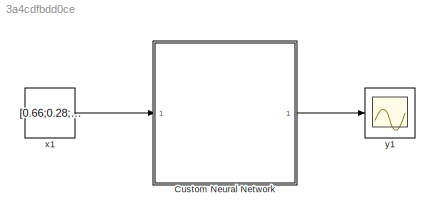
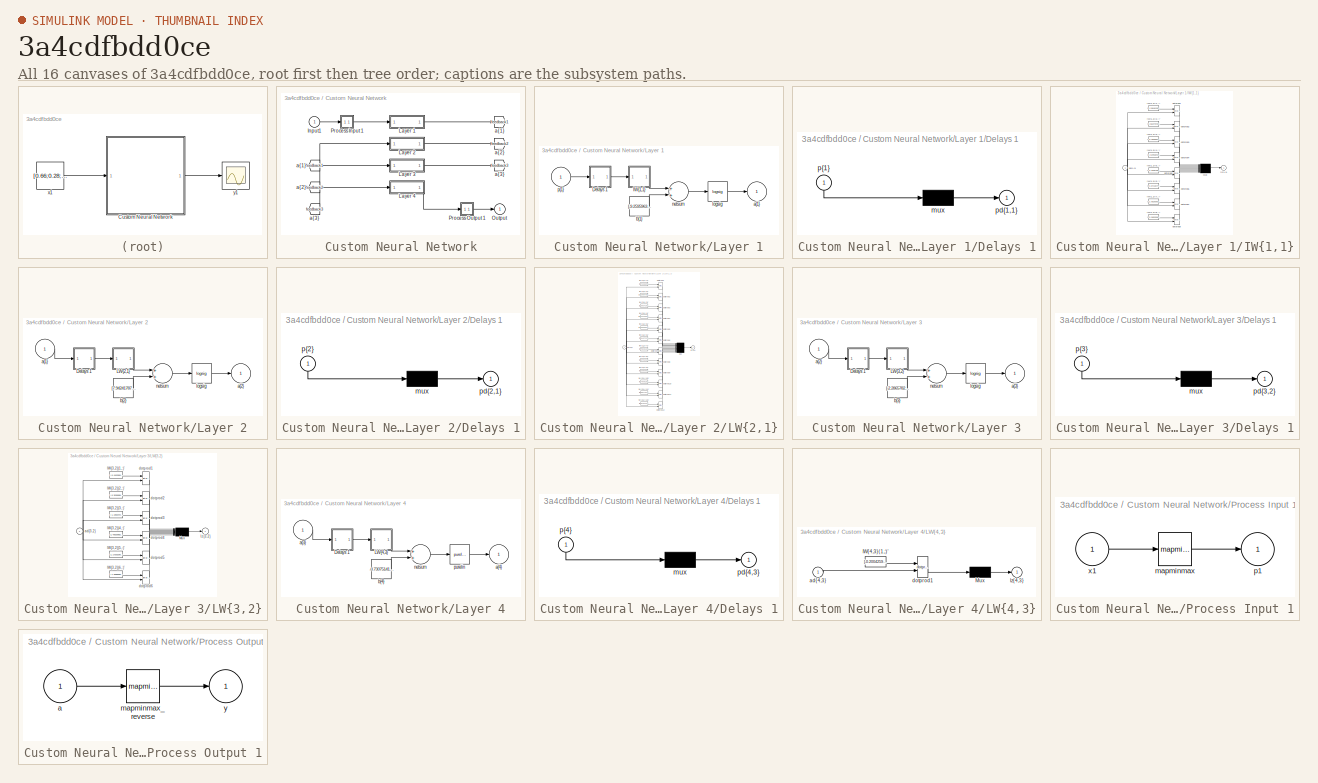
[diagram: thumbnail index - all 16 canvases of the model, root first then tree order]
MODEL slx_3a4cdfbdd0ce
KIND model
CONFIG AbsTol = auto
CONFIG FixedStep = auto
CONFIG MaxStep = auto
CONFIG MinStep = auto
CONFIG RelTol = 1e-3
CONFIG SampleTimeConstraint = Unconstrained
CONFIG Solver = VariableStepAuto
CONFIG SolverMode = Auto
CONFIG SolverName = VariableStepAuto
CONFIG StartTime = 0.0
CONFIG StopTime = 10.0
BLOCK [SubSystem] Custom Neural Network
  Ports = [1, 1]
  RequestExecContextInheritance = off
  Variant = off
BLOCK [From] Custom Neural Network/ a{1} 
  GotoTag = feedback1
BLOCK [From] Custom Neural Network/ a{2} 
  GotoTag = feedback2
BLOCK [From] Custom Neural Network/ a{3} 
  GotoTag = feedback3
BLOCK [Inport] Custom Neural Network/Input1 
  IconDisplay = Port number
  PortDimensions = 3
BLOCK [SubSystem] Custom Neural Network/Layer 1
  Ports = [1, 1]
  RequestExecContextInheritance = off
  Variant = off
BLOCK [SubSystem] Custom Neural Network/Layer 1/Delays 1
  Ports = [1, 1]
  RequestExecContextInheritance = off
  Variant = off
BLOCK [Mux] Custom Neural Network/Layer 1/Delays 1/mux
  Inputs = 1
  Ports = [1, 1]
BLOCK [Outport] Custom Neural Network/Layer 1/Delays 1/pd{1,1}
  IconDisplay = Port number
BLOCK [Inport] Custom Neural Network/Layer 1/Delays 1/p{1}
  IconDisplay = Port number
  PortDimensions = 3
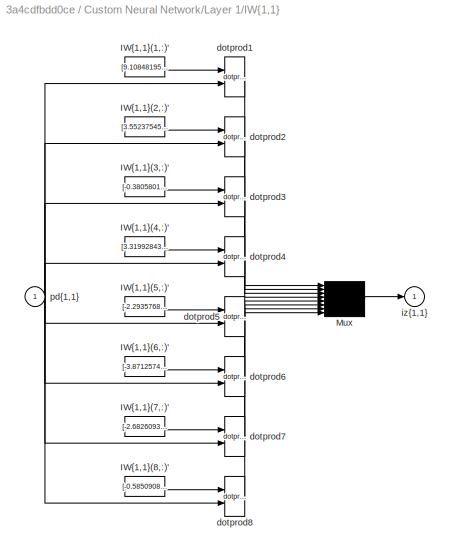
BLOCK [SubSystem] Custom Neural Network/Layer 1/IW{1,1}
  Ports = [1, 1]
  RequestExecContextInheritance = off
  Variant = off
BLOCK [Constant] Custom Neural Network/Layer 1/IW{1,1}/IW{1,1}(1,:)'
  Value = [9.1084819555099195;0.15987569344433911;-0.046776150350882159]
BLOCK [Constant] Custom Neural Network/Layer 1/IW{1,1}/IW{1,1}(2,:)'
  Value = [3.5523754574419706;4.5785828359828917;-2.90357059325309]
BLOCK [Constant] Custom Neural Network/Layer 1/IW{1,1}/IW{1,1}(3,:)'
  Value = [-0.38058013111663302;-4.0545223920856266;-3.0882084254570441]
BLOCK [Constant] Custom Neural Network/Layer 1/IW{1,1}/IW{1,1}(4,:)'
  Value = [3.3199284334235859;-1.4090237759094009;4.1433398290551855]
BLOCK [Constant] Custom Neural Network/Layer 1/IW{1,1}/IW{1,1}(5,:)'
  Value = [-2.293576863157464;-4.2962372851084316;6.2101001071899766]
BLOCK [Constant] Custom Neural Network/Layer 1/IW{1,1}/IW{1,1}(6,:)'
  Value = [-3.8712574461865725;-3.9635740488602211;-0.77875733358691812]
BLOCK [Constant] Custom Neural Network/Layer 1/IW{1,1}/IW{1,1}(7,:)'
  Value = [-2.6826093252746643;-0.21455261866844069;-4.6814615817476781]
BLOCK [Constant] Custom Neural Network/Layer 1/IW{1,1}/IW{1,1}(8,:)'
  Value = [-0.5850908133543663;-3.4324327709782589;-4.3360061013316109]
BLOCK [Mux] Custom Neural Network/Layer 1/IW{1,1}/Mux
  Inputs = 8
  Ports = [8, 1]
BLOCK [Reference] Custom Neural Network/Layer 1/IW{1,1}/dotprod1  REF=neural/Weight Functions/dotprod
  Ports = [2, 1]
  SourceBlock = neural/Weight Functions/dotprod
  SourceType = DOTPROD
BLOCK [Reference] Custom Neural Network/Layer 1/IW{1,1}/dotprod2  REF=neural/Weight Functions/dotprod
  Ports = [2, 1]
  SourceBlock = neural/Weight Functions/dotprod
  SourceType = DOTPROD
BLOCK [Reference] Custom Neural Network/Layer 1/IW{1,1}/dotprod3  REF=neural/Weight Functions/dotprod
  Ports = [2, 1]
  SourceBlock = neural/Weight Functions/dotprod
  SourceType = DOTPROD
BLOCK [Reference] Custom Neural Network/Layer 1/IW{1,1}/dotprod4  REF=neural/Weight Functions/dotprod
  Ports = [2, 1]
  SourceBlock = neural/Weight Functions/dotprod
  SourceType = DOTPROD
BLOCK [Reference] Custom Neural Network/Layer 1/IW{1,1}/dotprod5  REF=neural/Weight Functions/dotprod
  Ports = [2, 1]
  SourceBlock = neural/Weight Functions/dotprod
  SourceType = DOTPROD
BLOCK [Reference] Custom Neural Network/Layer 1/IW{1,1}/dotprod6  REF=neural/Weight Functions/dotprod
  Ports = [2, 1]
  SourceBlock = neural/Weight Functions/dotprod
  SourceType = DOTPROD
BLOCK [Reference] Custom Neural Network/Layer 1/IW{1,1}/dotprod7  REF=neural/Weight Functions/dotprod
  Ports = [2, 1]
  SourceBlock = neural/Weight Functions/dotprod
  SourceType = DOTPROD
BLOCK [Reference] Custom Neural Network/Layer 1/IW{1,1}/dotprod8  REF=neural/Weight Functions/dotprod
  Ports = [2, 1]
  SourceBlock = neural/Weight Functions/dotprod
  SourceType = DOTPROD
BLOCK [Outport] Custom Neural Network/Layer 1/IW{1,1}/iz{1,1}
  IconDisplay = Port number
BLOCK [Inport] Custom Neural Network/Layer 1/IW{1,1}/pd{1,1}
  IconDisplay = Port number
  PortDimensions = 3
BLOCK [Outport] Custom Neural Network/Layer 1/a{1}
  IconDisplay = Port number
  InitialOutput = [0;0;0;0;0;0;0;0]
BLOCK [Constant] Custom Neural Network/Layer 1/b{1}
  Value = [-9.2595963944558424;-2.2107237301390485;-3.7322520579344869;-0.51477897911733461;-2.2478265779126465;-1.1980943979150322;-4.4324038030714803;-5.4020355448946065]
BLOCK [Reference] Custom Neural Network/Layer 1/logsig  REF=neural/Transfer Functions/logsig
  Ports = [1, 1]
  SourceBlock = neural/Transfer Functions/logsig
  SourceType = LOGSIG
BLOCK [Sum] Custom Neural Network/Layer 1/netsum
  Inputs = 2
  Ports = [2, 1]
BLOCK [Inport] Custom Neural Network/Layer 1/p{1}
  IconDisplay = Port number
  PortDimensions = 3
BLOCK [SubSystem] Custom Neural Network/Layer 2
  Ports = [1, 1]
  RequestExecContextInheritance = off
  Variant = off
BLOCK [SubSystem] Custom Neural Network/Layer 2/Delays 1
  Ports = [1, 1]
  RequestExecContextInheritance = off
  Variant = off
BLOCK [Mux] Custom Neural Network/Layer 2/Delays 1/mux
  Inputs = 1
  Ports = [1, 1]
BLOCK [Outport] Custom Neural Network/Layer 2/Delays 1/pd{2,1}
  IconDisplay = Port number
BLOCK [Inport] Custom Neural Network/Layer 2/Delays 1/p{2}
  IconDisplay = Port number
  PortDimensions = 8
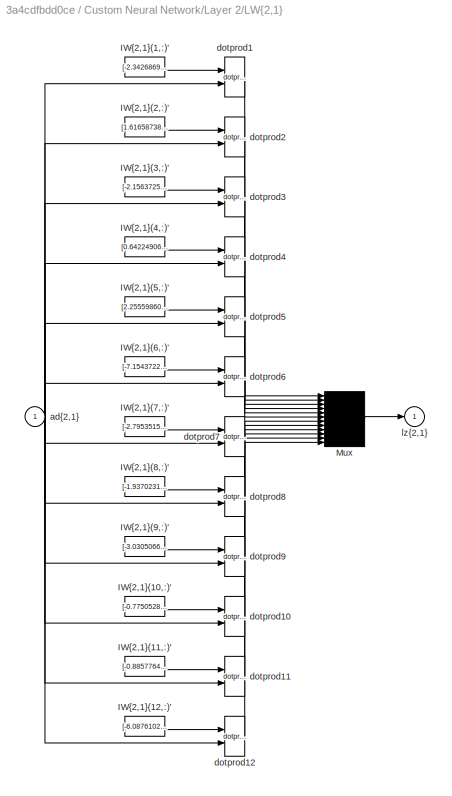
BLOCK [SubSystem] Custom Neural Network/Layer 2/LW{2,1}
  Ports = [1, 1]
  RequestExecContextInheritance = off
  Variant = off
BLOCK [Constant] Custom Neural Network/Layer 2/LW{2,1}/IW{2,1}(1,:)'
  Value = [-2.3426869759082471;-3.5936972397868203;-3.8918530225104169;-3.5870710015868741;-2.1060323339031757;1.0971909658567631;2.6105092789615809;2.1490615254864185]
BLOCK [Constant] Custom Neural Network/Layer 2/LW{2,1}/IW{2,1}(10,:)'
  Value = [-0.77505283774534306;4.3826885098700403;4.3247281225991037;2.2168787400642485;1.4790079852285491;0.28971021055527679;1.8377986586127775;3.5405309637807534]
BLOCK [Constant] Custom Neural Network/Layer 2/LW{2,1}/IW{2,1}(11,:)'
  Value = [-0.88577640987634143;0.52479568174212943;3.1630012300582586;3.811311435105893;4.2091581445069739;-0.62959473636182328;0.077977611711862294;3.2972568657832295]
BLOCK [Constant] Custom Neural Network/Layer 2/LW{2,1}/IW{2,1}(12,:)'
  Value = [-6.0876102331583839;1.6034717966903544;-2.9522780484320625;2.6281202626170841;1.0207722413386391;-3.2481629794290328;3.3339450873514456;-3.0705856496410338]
BLOCK [Constant] Custom Neural Network/Layer 2/LW{2,1}/IW{2,1}(2,:)'
  Value = [1.6165873808350273;4.0384242943323247;0.42263395486024224;-1.0053418967181691;3.1639453051092361;-2.5904001606112814;-4.5691976462880195;3.0808371856056693]
BLOCK [Constant] Custom Neural Network/Layer 2/LW{2,1}/IW{2,1}(3,:)'
  Value = [-2.1563725363541795;-4.0663006303654381;1.2118458462610544;1.79104167730389;-2.5242243934447277;-2.3829037540999138;-3.9494414309885695;-0.38399051323868683]
BLOCK [Constant] Custom Neural Network/Layer 2/LW{2,1}/IW{2,1}(4,:)'
  Value = [0.64224906805189497;3.4694587282737404;1.5852835140570847;-3.7486733132145416;-3.7751330546784763;3.635633600931464;0.32916645363799879;-0.48646702503172184]
BLOCK [Constant] Custom Neural Network/Layer 2/LW{2,1}/IW{2,1}(5,:)'
  Value = [2.255598600956652;2.3102459657915722;-0.56249152546205783;1.8123322459637858;2.0864368857001256;-4.3794112594449333;-3.6527790130124886;2.9850908820211144]
BLOCK [Constant] Custom Neural Network/Layer 2/LW{2,1}/IW{2,1}(6,:)'
  Value = [-7.1543722659001698;1.6029725223006486;-1.4247611554115991;-2.8348539448696362;0.189403079182557;-0.022411779763882207;3.4524051149485149;-4.2521863645922524]
BLOCK [Constant] Custom Neural Network/Layer 2/LW{2,1}/IW{2,1}(7,:)'
  Value = [-2.7953515352827507;-0.76785833783047708;3.9638870149223351;0.50087016875489088;-0.73182554543739309;-3.4683915303270085;2.3762022933229079;-3.5858500041593224]
BLOCK [Constant] Custom Neural Network/Layer 2/LW{2,1}/IW{2,1}(8,:)'
  Value = [-1.9370231360169587;-1.1743767955900977;-3.540435652513481;0.33281189800218036;4.3578330423530494;3.7549234740931117;1.8787051655052975;-2.5836585476130325]
BLOCK [Constant] Custom Neural Network/Layer 2/LW{2,1}/IW{2,1}(9,:)'
  Value = [-3.0305066793699575;-0.18094075054881525;4.2295793562151864;4.0350583081631504;0.7754368799537652;2.5682021764437972;-3.7238884746752206;-0.99664887192350926]
BLOCK [Mux] Custom Neural Network/Layer 2/LW{2,1}/Mux
  Inputs = 12
  Ports = [12, 1]
BLOCK [Inport] Custom Neural Network/Layer 2/LW{2,1}/ad{2,1}
  IconDisplay = Port number
  PortDimensions = 8
BLOCK [Reference] Custom Neural Network/Layer 2/LW{2,1}/dotprod1  REF=neural/Weight Functions/dotprod
  Ports = [2, 1]
  SourceBlock = neural/Weight Functions/dotprod
  SourceType = DOTPROD
BLOCK [Reference] Custom Neural Network/Layer 2/LW{2,1}/dotprod10  REF=neural/Weight Functions/dotprod
  Ports = [2, 1]
  SourceBlock = neural/Weight Functions/dotprod
  SourceType = DOTPROD
BLOCK [Reference] Custom Neural Network/Layer 2/LW{2,1}/dotprod11  REF=neural/Weight Functions/dotprod
  Ports = [2, 1]
  SourceBlock = neural/Weight Functions/dotprod
  SourceType = DOTPROD
BLOCK [Reference] Custom Neural Network/Layer 2/LW{2,1}/dotprod12  REF=neural/Weight Functions/dotprod
  Ports = [2, 1]
  SourceBlock = neural/Weight Functions/dotprod
  SourceType = DOTPROD
BLOCK [Reference] Custom Neural Network/Layer 2/LW{2,1}/dotprod2  REF=neural/Weight Functions/dotprod
  Ports = [2, 1]
  SourceBlock = neural/Weight Functions/dotprod
  SourceType = DOTPROD
BLOCK [Reference] Custom Neural Network/Layer 2/LW{2,1}/dotprod3  REF=neural/Weight Functions/dotprod
  Ports = [2, 1]
  SourceBlock = neural/Weight Functions/dotprod
  SourceType = DOTPROD
BLOCK [Reference] Custom Neural Network/Layer 2/LW{2,1}/dotprod4  REF=neural/Weight Functions/dotprod
  Ports = [2, 1]
  SourceBlock = neural/Weight Functions/dotprod
  SourceType = DOTPROD
BLOCK [Reference] Custom Neural Network/Layer 2/LW{2,1}/dotprod5  REF=neural/Weight Functions/dotprod
  Ports = [2, 1]
  SourceBlock = neural/Weight Functions/dotprod
  SourceType = DOTPROD
BLOCK [Reference] Custom Neural Network/Layer 2/LW{2,1}/dotprod6  REF=neural/Weight Functions/dotprod
  Ports = [2, 1]
  SourceBlock = neural/Weight Functions/dotprod
  SourceType = DOTPROD
BLOCK [Reference] Custom Neural Network/Layer 2/LW{2,1}/dotprod7  REF=neural/Weight Functions/dotprod
  Ports = [2, 1]
  SourceBlock = neural/Weight Functions/dotprod
  SourceType = DOTPROD
BLOCK [Reference] Custom Neural Network/Layer 2/LW{2,1}/dotprod8  REF=neural/Weight Functions/dotprod
  Ports = [2, 1]
  SourceBlock = neural/Weight Functions/dotprod
  SourceType = DOTPROD
BLOCK [Reference] Custom Neural Network/Layer 2/LW{2,1}/dotprod9  REF=neural/Weight Functions/dotprod
  Ports = [2, 1]
  SourceBlock = neural/Weight Functions/dotprod
  SourceType = DOTPROD
BLOCK [Outport] Custom Neural Network/Layer 2/LW{2,1}/lz{2,1}
  IconDisplay = Port number
BLOCK [Inport] Custom Neural Network/Layer 2/a{1} 
  IconDisplay = Port number
  PortDimensions = 8
BLOCK [Outport] Custom Neural Network/Layer 2/a{2}
  IconDisplay = Port number
  InitialOutput = [0;0;0;0;0;0;0;0;0;0;0;0]
BLOCK [Constant] Custom Neural Network/Layer 2/b{2}
  Value = [7.9424178760148703;-1.0715037861564831;9.4705082484882048;-2.8365267751808538;-2.6497132946935626;5.3259545457957973;-2.1694325307891109;-0.14187119348702187;-3.3840100412410958;-10.411139329549732;-4.6220649071138009;-1.2929607391945137]
BLOCK [Reference] Custom Neural Network/Layer 2/logsig  REF=neural/Transfer Functions/logsig
  Ports = [1, 1]
  SourceBlock = neural/Transfer Functions/logsig
  SourceType = LOGSIG
BLOCK [Sum] Custom Neural Network/Layer 2/netsum
  Inputs = 2
  Ports = [2, 1]
BLOCK [SubSystem] Custom Neural Network/Layer 3
  Ports = [1, 1]
  RequestExecContextInheritance = off
  Variant = off
BLOCK [SubSystem] Custom Neural Network/Layer 3/Delays 1
  Ports = [1, 1]
  RequestExecContextInheritance = off
  Variant = off
BLOCK [Mux] Custom Neural Network/Layer 3/Delays 1/mux
  Inputs = 1
  Ports = [1, 1]
BLOCK [Outport] Custom Neural Network/Layer 3/Delays 1/pd{3,2}
  IconDisplay = Port number
BLOCK [Inport] Custom Neural Network/Layer 3/Delays 1/p{3}
  IconDisplay = Port number
  PortDimensions = 12
BLOCK [SubSystem] Custom Neural Network/Layer 3/LW{3,2}
  Ports = [1, 1]
  RequestExecContextInheritance = off
  Variant = off
BLOCK [Constant] Custom Neural Network/Layer 3/LW{3,2}/IW{3,2}(1,:)'
  Value = [-0.41533609120311954;0.26134562140957263;-1.6702482976951005;1.740747947291255;3.4119446713761388;1.6037736729273715;0.54383527534279508;2.9473346585501048;-0.28418483399727279;0.57552477995666973;2.7661288379659319;2.9058559766227514]
BLOCK [Constant] Custom Neural Network/Layer 3/LW{3,2}/IW{3,2}(2,:)'
  Value = [-0.35306898197916309;-3.627593916594452;-0.55499693449603216;-1.3995721420880884;-1.3433202858703783;-2.8394634116529289;1.6137212522785782;-3.4765191381475335;-0.58980218843696175;-1.7995279264267727;1.5678830476248951;1.4028306188283945]
BLOCK [Constant] Custom Neural Network/Layer 3/LW{3,2}/IW{3,2}(3,:)'
  Value = [-1.1993444511021154;3.5649841550525747;-0.92819506067165725;-0.64660229962911631;2.4294018583654808;-2.7555577544360159;1.3733450813231496;2.1507355669232489;-1.4916799369713134;-1.4858660184726733;-0.12205918850500633;-1.7887749440372582]
BLOCK [Constant] Custom Neural Network/Layer 3/LW{3,2}/IW{3,2}(4,:)'
  Value = [1.4362098235524841;-3.3095113241476573;2.210462376745097;0.030487519315720885;-0.40041820958916019;7.1179363403644444;-1.6023762136871695;0.93035918380858484;2.2922483877584323;0.95809972455898662;0.33038834116037419;4.5093730642613146]
BLOCK [Constant] Custom Neural Network/Layer 3/LW{3,2}/IW{3,2}(5,:)'
  Value = [1.1720329022795273;-1.753727155157607;3.2747285132730783;2.6733972415436305;1.3493467034025433;-1.1344659902815224;-0.85264970762122194;-0.93003178170965883;-1.4579570687108809;-1.3849527739630112;-0.67646880425624079;-2.5768053647444149]
BLOCK [Constant] Custom Neural Network/Layer 3/LW{3,2}/IW{3,2}(6,:)'
  Value = [-1.3688089569135662;-0.82745011495544196;-3.0067757157071959;-0.5226271962776976;1.3838895438327961;-3.2168040766823678;-0.28436775504929734;-2.1429830694825744;-0.78921032113382183;2.2086290967592861;2.7384310771876268;-0.56611095308966741]
BLOCK [Mux] Custom Neural Network/Layer 3/LW{3,2}/Mux
  Inputs = 6
  Ports = [6, 1]
BLOCK [Inport] Custom Neural Network/Layer 3/LW{3,2}/ad{3,2}
  IconDisplay = Port number
  PortDimensions = 12
BLOCK [Reference] Custom Neural Network/Layer 3/LW{3,2}/dotprod1  REF=neural/Weight Functions/dotprod
  Ports = [2, 1]
  SourceBlock = neural/Weight Functions/dotprod
  SourceType = DOTPROD
BLOCK [Reference] Custom Neural Network/Layer 3/LW{3,2}/dotprod2  REF=neural/Weight Functions/dotprod
  Ports = [2, 1]
  SourceBlock = neural/Weight Functions/dotprod
  SourceType = DOTPROD
BLOCK [Reference] Custom Neural Network/Layer 3/LW{3,2}/dotprod3  REF=neural/Weight Functions/dotprod
  Ports = [2, 1]
  SourceBlock = neural/Weight Functions/dotprod
  SourceType = DOTPROD
BLOCK [Reference] Custom Neural Network/Layer 3/LW{3,2}/dotprod4  REF=neural/Weight Functions/dotprod
  Ports = [2, 1]
  SourceBlock = neural/Weight Functions/dotprod
  SourceType = DOTPROD
BLOCK [Reference] Custom Neural Network/Layer 3/LW{3,2}/dotprod5  REF=neural/Weight Functions/dotprod
  Ports = [2, 1]
  SourceBlock = neural/Weight Functions/dotprod
  SourceType = DOTPROD
BLOCK [Reference] Custom Neural Network/Layer 3/LW{3,2}/dotprod6  REF=neural/Weight Functions/dotprod
  Ports = [2, 1]
  SourceBlock = neural/Weight Functions/dotprod
  SourceType = DOTPROD
BLOCK [Outport] Custom Neural Network/Layer 3/LW{3,2}/lz{3,2}
  IconDisplay = Port number
BLOCK [Inport] Custom Neural Network/Layer 3/a{2} 
  IconDisplay = Port number
  PortDimensions = 12
BLOCK [Outport] Custom Neural Network/Layer 3/a{3}
  IconDisplay = Port number
  InitialOutput = [0;0;0;0;0;0]
BLOCK [Constant] Custom Neural Network/Layer 3/b{3}
  Value = [-2.2865782177931968;0.70867096373344174;2.4862165560885137;-4.9603480471761339;6.85220739770363;-0.0022946230087913782]
BLOCK [Reference] Custom Neural Network/Layer 3/logsig  REF=neural/Transfer Functions/logsig
  Ports = [1, 1]
  SourceBlock = neural/Transfer Functions/logsig
  SourceType = LOGSIG
BLOCK [Sum] Custom Neural Network/Layer 3/netsum
  Inputs = 2
  Ports = [2, 1]
BLOCK [SubSystem] Custom Neural Network/Layer 4
  Ports = [1, 1]
  RequestExecContextInheritance = off
  Variant = off
BLOCK [SubSystem] Custom Neural Network/Layer 4/Delays 1
  Ports = [1, 1]
  RequestExecContextInheritance = off
  Variant = off
BLOCK [Mux] Custom Neural Network/Layer 4/Delays 1/mux
  Inputs = 1
  Ports = [1, 1]
BLOCK [Outport] Custom Neural Network/Layer 4/Delays 1/pd{4,3}
  IconDisplay = Port number
BLOCK [Inport] Custom Neural Network/Layer 4/Delays 1/p{4}
  IconDisplay = Port number
  PortDimensions = 6
BLOCK [SubSystem] Custom Neural Network/Layer 4/LW{4,3}
  Ports = [1, 1]
  RequestExecContextInheritance = off
  Variant = off
BLOCK [Constant] Custom Neural Network/Layer 4/LW{4,3}/IW{4,3}(1,:)'
  Value = [-0.20042591822894609;-0.64744471952713056;-1.2333198811512902;4.3067404305054193;-2.2159873115779671;-0.56464151103445614]
BLOCK [Mux] Custom Neural Network/Layer 4/LW{4,3}/Mux
  Inputs = 1
  Ports = [1, 1]
BLOCK [Inport] Custom Neural Network/Layer 4/LW{4,3}/ad{4,3}
  IconDisplay = Port number
  PortDimensions = 6
BLOCK [Reference] Custom Neural Network/Layer 4/LW{4,3}/dotprod1  REF=neural/Weight Functions/dotprod
  Ports = [2, 1]
  SourceBlock = neural/Weight Functions/dotprod
  SourceType = DOTPROD
BLOCK [Outport] Custom Neural Network/Layer 4/LW{4,3}/lz{4,3}
  IconDisplay = Port number
BLOCK [Inport] Custom Neural Network/Layer 4/a{3} 
  IconDisplay = Port number
  PortDimensions = 6
BLOCK [Outport] Custom Neural Network/Layer 4/a{4}
  IconDisplay = Port number
  InitialOutput = 0
BLOCK [Constant] Custom Neural Network/Layer 4/b{4}
  Value = -0.73075141708033209
BLOCK [Sum] Custom Neural Network/Layer 4/netsum
  Inputs = 2
  Ports = [2, 1]
BLOCK [Reference] Custom Neural Network/Layer 4/purelin  REF=neural/Transfer Functions/purelin
  Ports = [1, 1]
  SourceBlock = neural/Transfer Functions/purelin
  SourceType = PURELIN
BLOCK [Outport] Custom Neural Network/Output
  IconDisplay = Port number
  InitialOutput = 0
BLOCK [SubSystem] Custom Neural Network/Process Input 1
  Ports = [1, 1]
  RequestExecContextInheritance = off
  Variant = off
BLOCK [Reference] Custom Neural Network/Process Input 1/mapminmax  REF=neural/Processing Functions/mapminmax
  Ports = [1, 1]
  SourceBlock = neural/Processing Functions/mapminmax
  SourceType = MAPMINMAX Preprocess
BLOCK [Outport] Custom Neural Network/Process Input 1/p1
  IconDisplay = Port number
  PortDimensions = 3
BLOCK [Inport] Custom Neural Network/Process Input 1/x1
  IconDisplay = Port number
  PortDimensions = 3
BLOCK [SubSystem] Custom Neural Network/Process Output 1
  Ports = [1, 1]
  RequestExecContextInheritance = off
  Variant = off
BLOCK [Inport] Custom Neural Network/Process Output 1/a
  IconDisplay = Port number
  PortDimensions = 1
BLOCK [Reference] Custom Neural Network/Process Output 1/mapminmax_reverse  REF=neural/Processing Functions/mapminmax_reverse
  Ports = [1, 1]
  SourceBlock = neural/Processing Functions/mapminmax_reverse
  SourceType = MAPMINMAX Reverse Process
BLOCK [Outport] Custom Neural Network/Process Output 1/y
  IconDisplay = Port number
  PortDimensions = 1
BLOCK [Goto] Custom Neural Network/a{1}
  GotoTag = feedback1
BLOCK [Goto] Custom Neural Network/a{2}
  GotoTag = feedback2
BLOCK [Goto] Custom Neural Network/a{3}
  GotoTag = feedback3
BLOCK [Constant] x1
  SampleTime = 1
  Value = [0.66;0.28;0.23]
BLOCK [Scope] y1
  Ports = [1]
LINE Custom Neural Network/ a{1} :1 -> Custom Neural Network/Layer 2:1
LINE Custom Neural Network/ a{2} :1 -> Custom Neural Network/Layer 3:1
LINE Custom Neural Network/ a{3} :1 -> Custom Neural Network/Layer 4:1
LINE Custom Neural Network/Input1 :1 -> Custom Neural Network/Process Input 1:1
LINE Custom Neural Network/Layer 1/Delays 1/mux:1 -> Custom Neural Network/Layer 1/Delays 1/pd{1,1}:1
LINE Custom Neural Network/Layer 1/Delays 1/p{1}:1 -> Custom Neural Network/Layer 1/Delays 1/mux:1
LINE Custom Neural Network/Layer 1/Delays 1:1 -> Custom Neural Network/Layer 1/IW{1,1}:1
LINE Custom Neural Network/Layer 1/IW{1,1}/IW{1,1}(1,:)':1 -> Custom Neural Network/Layer 1/IW{1,1}/dotprod1:1
LINE Custom Neural Network/Layer 1/IW{1,1}/IW{1,1}(2,:)':1 -> Custom Neural Network/Layer 1/IW{1,1}/dotprod2:1
LINE Custom Neural Network/Layer 1/IW{1,1}/IW{1,1}(3,:)':1 -> Custom Neural Network/Layer 1/IW{1,1}/dotprod3:1
LINE Custom Neural Network/Layer 1/IW{1,1}/IW{1,1}(4,:)':1 -> Custom Neural Network/Layer 1/IW{1,1}/dotprod4:1
LINE Custom Neural Network/Layer 1/IW{1,1}/IW{1,1}(5,:)':1 -> Custom Neural Network/Layer 1/IW{1,1}/dotprod5:1
LINE Custom Neural Network/Layer 1/IW{1,1}/IW{1,1}(6,:)':1 -> Custom Neural Network/Layer 1/IW{1,1}/dotprod6:1
LINE Custom Neural Network/Layer 1/IW{1,1}/IW{1,1}(7,:)':1 -> Custom Neural Network/Layer 1/IW{1,1}/dotprod7:1
LINE Custom Neural Network/Layer 1/IW{1,1}/IW{1,1}(8,:)':1 -> Custom Neural Network/Layer 1/IW{1,1}/dotprod8:1
LINE Custom Neural Network/Layer 1/IW{1,1}/Mux:1 -> Custom Neural Network/Layer 1/IW{1,1}/iz{1,1}:1
LINE Custom Neural Network/Layer 1/IW{1,1}/dotprod1:1 -> Custom Neural Network/Layer 1/IW{1,1}/Mux:1
LINE Custom Neural Network/Layer 1/IW{1,1}/dotprod2:1 -> Custom Neural Network/Layer 1/IW{1,1}/Mux:2
LINE Custom Neural Network/Layer 1/IW{1,1}/dotprod3:1 -> Custom Neural Network/Layer 1/IW{1,1}/Mux:3
LINE Custom Neural Network/Layer 1/IW{1,1}/dotprod4:1 -> Custom Neural Network/Layer 1/IW{1,1}/Mux:4
LINE Custom Neural Network/Layer 1/IW{1,1}/dotprod5:1 -> Custom Neural Network/Layer 1/IW{1,1}/Mux:5
LINE Custom Neural Network/Layer 1/IW{1,1}/dotprod6:1 -> Custom Neural Network/Layer 1/IW{1,1}/Mux:6
LINE Custom Neural Network/Layer 1/IW{1,1}/dotprod7:1 -> Custom Neural Network/Layer 1/IW{1,1}/Mux:7
LINE Custom Neural Network/Layer 1/IW{1,1}/dotprod8:1 -> Custom Neural Network/Layer 1/IW{1,1}/Mux:8
NET Custom Neural Network/Layer 1/IW{1,1}/pd{1,1}:1 -> Custom Neural Network/Layer 1/IW{1,1}/dotprod1:2, Custom Neural Network/Layer 1/IW{1,1}/dotprod2:2, Custom Neural Network/Layer 1/IW{1,1}/dotprod3:2, Custom Neural Network/Layer 1/IW{1,1}/dotprod4:2, Custom Neural Network/Layer 1/IW{1,1}/dotprod5:2, Custom Neural Network/Layer 1/IW{1,1}/dotprod6:2, Custom Neural Network/Layer 1/IW{1,1}/dotprod7:2, Custom Neural Network/Layer 1/IW{1,1}/dotprod8:2
LINE Custom Neural Network/Layer 1/IW{1,1}:1 -> Custom Neural Network/Layer 1/netsum:1
LINE Custom Neural Network/Layer 1/b{1}:1 -> Custom Neural Network/Layer 1/netsum:2
LINE Custom Neural Network/Layer 1/logsig:1 -> Custom Neural Network/Layer 1/a{1}:1
LINE Custom Neural Network/Layer 1/netsum:1 -> Custom Neural Network/Layer 1/logsig:1
LINE Custom Neural Network/Layer 1/p{1}:1 -> Custom Neural Network/Layer 1/Delays 1:1
LINE Custom Neural Network/Layer 1:1 -> Custom Neural Network/a{1}:1
LINE Custom Neural Network/Layer 2/Delays 1/mux:1 -> Custom Neural Network/Layer 2/Delays 1/pd{2,1}:1
LINE Custom Neural Network/Layer 2/Delays 1/p{2}:1 -> Custom Neural Network/Layer 2/Delays 1/mux:1
LINE Custom Neural Network/Layer 2/Delays 1:1 -> Custom Neural Network/Layer 2/LW{2,1}:1
LINE Custom Neural Network/Layer 2/LW{2,1}/IW{2,1}(1,:)':1 -> Custom Neural Network/Layer 2/LW{2,1}/dotprod1:1
LINE Custom Neural Network/Layer 2/LW{2,1}/IW{2,1}(10,:)':1 -> Custom Neural Network/Layer 2/LW{2,1}/dotprod10:1
LINE Custom Neural Network/Layer 2/LW{2,1}/IW{2,1}(11,:)':1 -> Custom Neural Network/Layer 2/LW{2,1}/dotprod11:1
LINE Custom Neural Network/Layer 2/LW{2,1}/IW{2,1}(12,:)':1 -> Custom Neural Network/Layer 2/LW{2,1}/dotprod12:1
LINE Custom Neural Network/Layer 2/LW{2,1}/IW{2,1}(2,:)':1 -> Custom Neural Network/Layer 2/LW{2,1}/dotprod2:1
LINE Custom Neural Network/Layer 2/LW{2,1}/IW{2,1}(3,:)':1 -> Custom Neural Network/Layer 2/LW{2,1}/dotprod3:1
LINE Custom Neural Network/Layer 2/LW{2,1}/IW{2,1}(4,:)':1 -> Custom Neural Network/Layer 2/LW{2,1}/dotprod4:1
LINE Custom Neural Network/Layer 2/LW{2,1}/IW{2,1}(5,:)':1 -> Custom Neural Network/Layer 2/LW{2,1}/dotprod5:1
LINE Custom Neural Network/Layer 2/LW{2,1}/IW{2,1}(6,:)':1 -> Custom Neural Network/Layer 2/LW{2,1}/dotprod6:1
LINE Custom Neural Network/Layer 2/LW{2,1}/IW{2,1}(7,:)':1 -> Custom Neural Network/Layer 2/LW{2,1}/dotprod7:1
LINE Custom Neural Network/Layer 2/LW{2,1}/IW{2,1}(8,:)':1 -> Custom Neural Network/Layer 2/LW{2,1}/dotprod8:1
LINE Custom Neural Network/Layer 2/LW{2,1}/IW{2,1}(9,:)':1 -> Custom Neural Network/Layer 2/LW{2,1}/dotprod9:1
LINE Custom Neural Network/Layer 2/LW{2,1}/Mux:1 -> Custom Neural Network/Layer 2/LW{2,1}/lz{2,1}:1
NET Custom Neural Network/Layer 2/LW{2,1}/ad{2,1}:1 -> Custom Neural Network/Layer 2/LW{2,1}/dotprod10:2, Custom Neural Network/Layer 2/LW{2,1}/dotprod11:2, Custom Neural Network/Layer 2/LW{2,1}/dotprod12:2, Custom Neural Network/Layer 2/LW{2,1}/dotprod1:2, Custom Neural Network/Layer 2/LW{2,1}/dotprod2:2, Custom Neural Network/Layer 2/LW{2,1}/dotprod3:2, Custom Neural Network/Layer 2/LW{2,1}/dotprod4:2, Custom Neural Network/Layer 2/LW{2,1}/dotprod5:2, Custom Neural Network/Layer 2/LW{2,1}/dotprod6:2, Custom Neural Network/Layer 2/LW{2,1}/dotprod7:2, Custom Neural Network/Layer 2/LW{2,1}/dotprod8:2, Custom Neural Network/Layer 2/LW{2,1}/dotprod9:2
LINE Custom Neural Network/Layer 2/LW{2,1}/dotprod10:1 -> Custom Neural Network/Layer 2/LW{2,1}/Mux:10
LINE Custom Neural Network/Layer 2/LW{2,1}/dotprod11:1 -> Custom Neural Network/Layer 2/LW{2,1}/Mux:11
LINE Custom Neural Network/Layer 2/LW{2,1}/dotprod12:1 -> Custom Neural Network/Layer 2/LW{2,1}/Mux:12
LINE Custom Neural Network/Layer 2/LW{2,1}/dotprod1:1 -> Custom Neural Network/Layer 2/LW{2,1}/Mux:1
LINE Custom Neural Network/Layer 2/LW{2,1}/dotprod2:1 -> Custom Neural Network/Layer 2/LW{2,1}/Mux:2
LINE Custom Neural Network/Layer 2/LW{2,1}/dotprod3:1 -> Custom Neural Network/Layer 2/LW{2,1}/Mux:3
LINE Custom Neural Network/Layer 2/LW{2,1}/dotprod4:1 -> Custom Neural Network/Layer 2/LW{2,1}/Mux:4
LINE Custom Neural Network/Layer 2/LW{2,1}/dotprod5:1 -> Custom Neural Network/Layer 2/LW{2,1}/Mux:5
LINE Custom Neural Network/Layer 2/LW{2,1}/dotprod6:1 -> Custom Neural Network/Layer 2/LW{2,1}/Mux:6
LINE Custom Neural Network/Layer 2/LW{2,1}/dotprod7:1 -> Custom Neural Network/Layer 2/LW{2,1}/Mux:7
LINE Custom Neural Network/Layer 2/LW{2,1}/dotprod8:1 -> Custom Neural Network/Layer 2/LW{2,1}/Mux:8
LINE Custom Neural Network/Layer 2/LW{2,1}/dotprod9:1 -> Custom Neural Network/Layer 2/LW{2,1}/Mux:9
LINE Custom Neural Network/Layer 2/LW{2,1}:1 -> Custom Neural Network/Layer 2/netsum:1
LINE Custom Neural Network/Layer 2/a{1} :1 -> Custom Neural Network/Layer 2/Delays 1:1
LINE Custom Neural Network/Layer 2/b{2}:1 -> Custom Neural Network/Layer 2/netsum:2
LINE Custom Neural Network/Layer 2/logsig:1 -> Custom Neural Network/Layer 2/a{2}:1
LINE Custom Neural Network/Layer 2/netsum:1 -> Custom Neural Network/Layer 2/logsig:1
LINE Custom Neural Network/Layer 2:1 -> Custom Neural Network/a{2}:1
LINE Custom Neural Network/Layer 3/Delays 1/mux:1 -> Custom Neural Network/Layer 3/Delays 1/pd{3,2}:1
LINE Custom Neural Network/Layer 3/Delays 1/p{3}:1 -> Custom Neural Network/Layer 3/Delays 1/mux:1
LINE Custom Neural Network/Layer 3/Delays 1:1 -> Custom Neural Network/Layer 3/LW{3,2}:1
LINE Custom Neural Network/Layer 3/LW{3,2}/IW{3,2}(1,:)':1 -> Custom Neural Network/Layer 3/LW{3,2}/dotprod1:1
LINE Custom Neural Network/Layer 3/LW{3,2}/IW{3,2}(2,:)':1 -> Custom Neural Network/Layer 3/LW{3,2}/dotprod2:1
LINE Custom Neural Network/Layer 3/LW{3,2}/IW{3,2}(3,:)':1 -> Custom Neural Network/Layer 3/LW{3,2}/dotprod3:1
LINE Custom Neural Network/Layer 3/LW{3,2}/IW{3,2}(4,:)':1 -> Custom Neural Network/Layer 3/LW{3,2}/dotprod4:1
LINE Custom Neural Network/Layer 3/LW{3,2}/IW{3,2}(5,:)':1 -> Custom Neural Network/Layer 3/LW{3,2}/dotprod5:1
LINE Custom Neural Network/Layer 3/LW{3,2}/IW{3,2}(6,:)':1 -> Custom Neural Network/Layer 3/LW{3,2}/dotprod6:1
LINE Custom Neural Network/Layer 3/LW{3,2}/Mux:1 -> Custom Neural Network/Layer 3/LW{3,2}/lz{3,2}:1
NET Custom Neural Network/Layer 3/LW{3,2}/ad{3,2}:1 -> Custom Neural Network/Layer 3/LW{3,2}/dotprod1:2, Custom Neural Network/Layer 3/LW{3,2}/dotprod2:2, Custom Neural Network/Layer 3/LW{3,2}/dotprod3:2, Custom Neural Network/Layer 3/LW{3,2}/dotprod4:2, Custom Neural Network/Layer 3/LW{3,2}/dotprod5:2, Custom Neural Network/Layer 3/LW{3,2}/dotprod6:2
LINE Custom Neural Network/Layer 3/LW{3,2}/dotprod1:1 -> Custom Neural Network/Layer 3/LW{3,2}/Mux:1
LINE Custom Neural Network/Layer 3/LW{3,2}/dotprod2:1 -> Custom Neural Network/Layer 3/LW{3,2}/Mux:2
LINE Custom Neural Network/Layer 3/LW{3,2}/dotprod3:1 -> Custom Neural Network/Layer 3/LW{3,2}/Mux:3
LINE Custom Neural Network/Layer 3/LW{3,2}/dotprod4:1 -> Custom Neural Network/Layer 3/LW{3,2}/Mux:4
LINE Custom Neural Network/Layer 3/LW{3,2}/dotprod5:1 -> Custom Neural Network/Layer 3/LW{3,2}/Mux:5
LINE Custom Neural Network/Layer 3/LW{3,2}/dotprod6:1 -> Custom Neural Network/Layer 3/LW{3,2}/Mux:6
LINE Custom Neural Network/Layer 3/LW{3,2}:1 -> Custom Neural Network/Layer 3/netsum:1
LINE Custom Neural Network/Layer 3/a{2} :1 -> Custom Neural Network/Layer 3/Delays 1:1
LINE Custom Neural Network/Layer 3/b{3}:1 -> Custom Neural Network/Layer 3/netsum:2
LINE Custom Neural Network/Layer 3/logsig:1 -> Custom Neural Network/Layer 3/a{3}:1
LINE Custom Neural Network/Layer 3/netsum:1 -> Custom Neural Network/Layer 3/logsig:1
LINE Custom Neural Network/Layer 3:1 -> Custom Neural Network/a{3}:1
LINE Custom Neural Network/Layer 4/Delays 1/mux:1 -> Custom Neural Network/Layer 4/Delays 1/pd{4,3}:1
LINE Custom Neural Network/Layer 4/Delays 1/p{4}:1 -> Custom Neural Network/Layer 4/Delays 1/mux:1
LINE Custom Neural Network/Layer 4/Delays 1:1 -> Custom Neural Network/Layer 4/LW{4,3}:1
LINE Custom Neural Network/Layer 4/LW{4,3}/IW{4,3}(1,:)':1 -> Custom Neural Network/Layer 4/LW{4,3}/dotprod1:1
LINE Custom Neural Network/Layer 4/LW{4,3}/Mux:1 -> Custom Neural Network/Layer 4/LW{4,3}/lz{4,3}:1
LINE Custom Neural Network/Layer 4/LW{4,3}/ad{4,3}:1 -> Custom Neural Network/Layer 4/LW{4,3}/dotprod1:2
LINE Custom Neural Network/Layer 4/LW{4,3}/dotprod1:1 -> Custom Neural Network/Layer 4/LW{4,3}/Mux:1
LINE Custom Neural Network/Layer 4/LW{4,3}:1 -> Custom Neural Network/Layer 4/netsum:1
LINE Custom Neural Network/Layer 4/a{3} :1 -> Custom Neural Network/Layer 4/Delays 1:1
LINE Custom Neural Network/Layer 4/b{4}:1 -> Custom Neural Network/Layer 4/netsum:2
LINE Custom Neural Network/Layer 4/netsum:1 -> Custom Neural Network/Layer 4/purelin:1
LINE Custom Neural Network/Layer 4/purelin:1 -> Custom Neural Network/Layer 4/a{4}:1
LINE Custom Neural Network/Layer 4:1 -> Custom Neural Network/Process Output 1:1
LINE Custom Neural Network/Process Input 1/mapminmax:1 -> Custom Neural Network/Process Input 1/p1:1
LINE Custom Neural Network/Process Input 1/x1:1 -> Custom Neural Network/Process Input 1/mapminmax:1
LINE Custom Neural Network/Process Input 1:1 -> Custom Neural Network/Layer 1:1
LINE Custom Neural Network/Process Output 1/a:1 -> Custom Neural Network/Process Output 1/mapminmax_reverse:1
LINE Custom Neural Network/Process Output 1/mapminmax_reverse:1 -> Custom Neural Network/Process Output 1/y:1
LINE Custom Neural Network/Process Output 1:1 -> Custom Neural Network/Output:1
LINE Custom Neural Network:1 -> y1:1
LINE x1:1 -> Custom Neural Network:1
note: NET lines group one-source signal fan-out (src -> all destinations, sorted); 1:1 wires keep LINE
